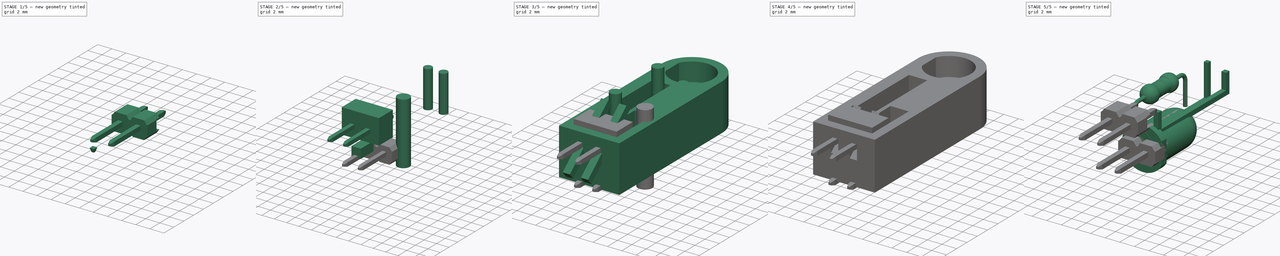
[diagram: build sequence overview — one tinted view per stage of 5, left to right]
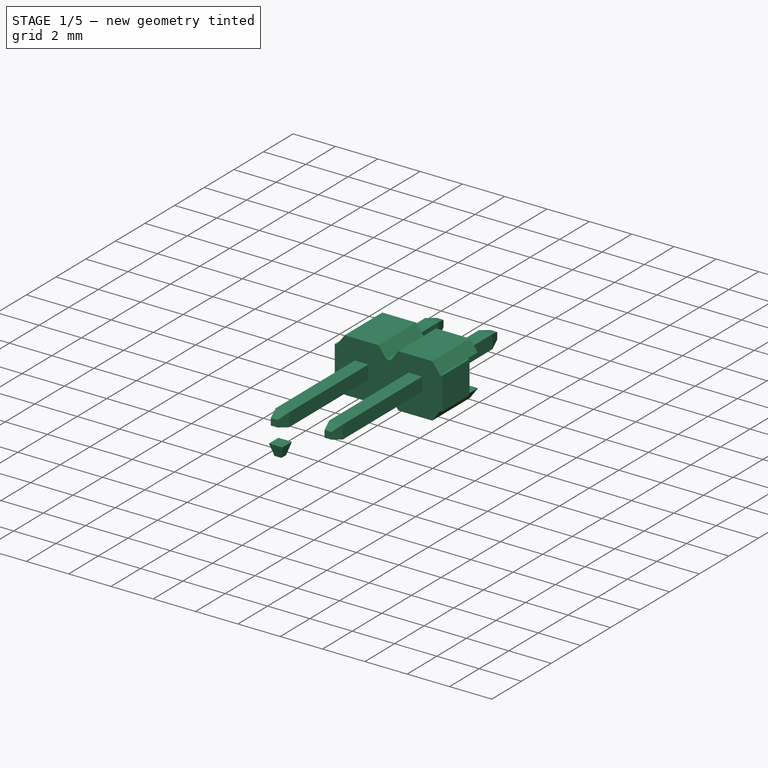
[diagram: stage 1 of 5 — iso view after this stage's code; geometry added in this stage tinted green]
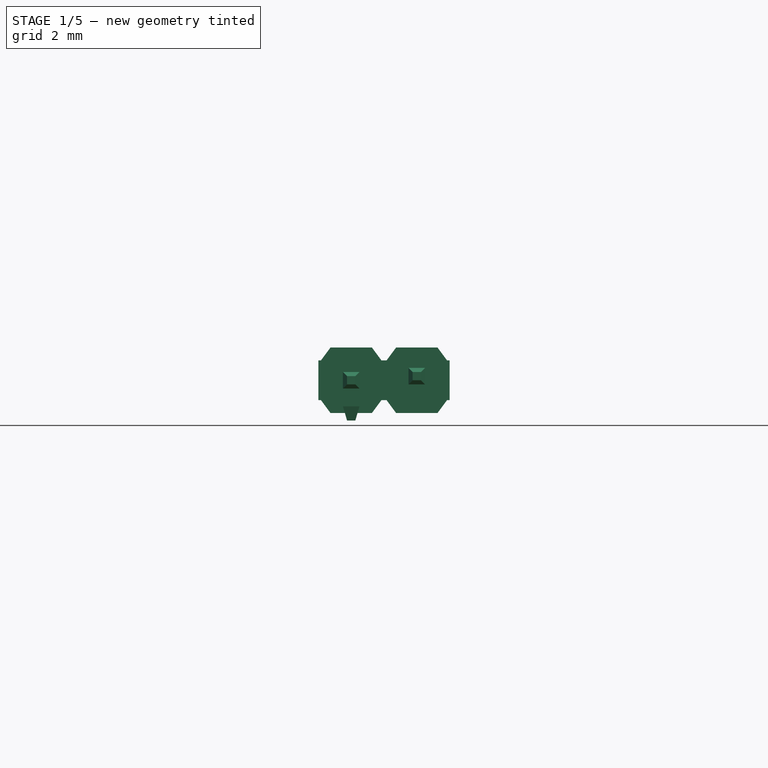
[diagram: stage 1 of 5 — front view after this stage's code; geometry added in this stage tinted green]
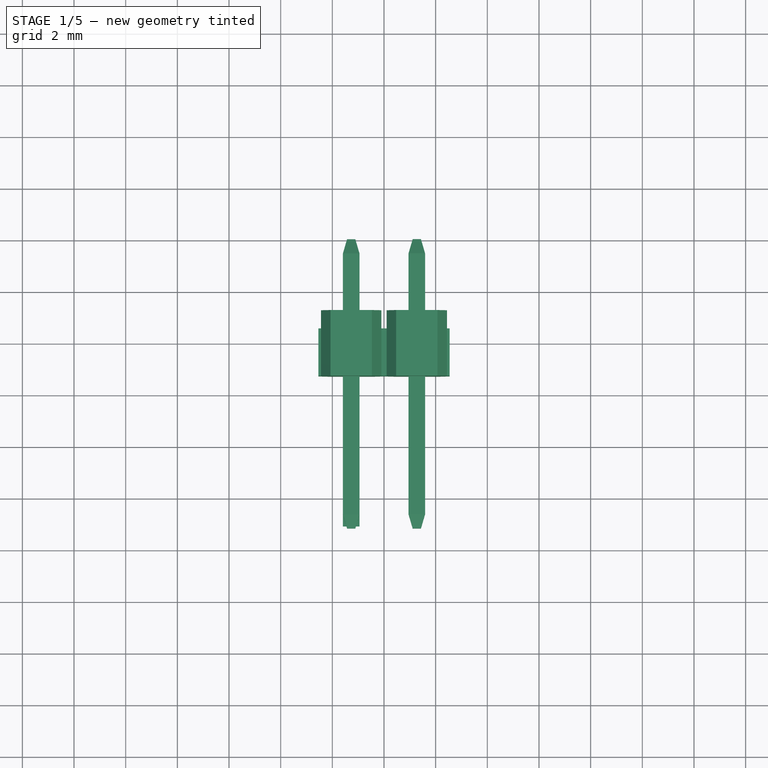
[diagram: stage 1 of 5 — top view after this stage's code; geometry added in this stage tinted green]
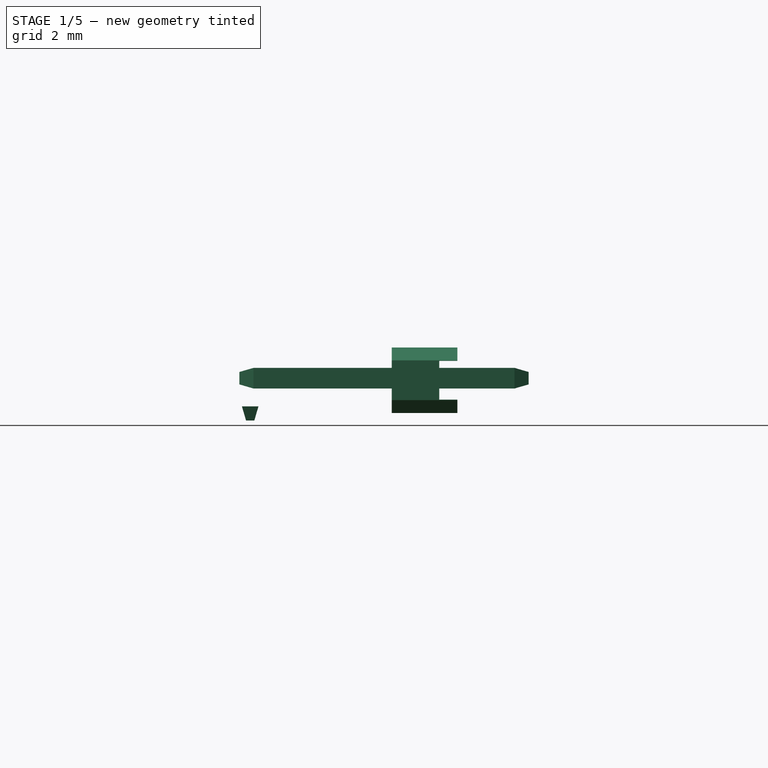
[diagram: stage 1 of 5 — right view after this stage's code; geometry added in this stage tinted green]
FCSTD DOCUMENT  (FreeCAD 0.18R16131 (Git))
Label: pcb-led-recto
License: Public Domain
LicenseURL: http://en.wikipedia.org/wiki/Public_domain
objects: Part::MultiFuse×16, Sketcher::SketchObject×13, Part::Box×10, Part::Cut×8, Part::Feature×8, Part::FeaturePython×6, App::DocumentObjectGroup×4, Part::Cylinder×3, PartDesign::Pad×2, PartDesign::Pocket×2, Part::Loft×2, PartDesign::Body×2, Part::Part2DObjectPython×2, Part::Extrusion×2, Part::Compound×1, PartDesign::ShapeBinder×1, PartDesign::Revolution×1, Part::Sweep×1
note: 85 computed .brp shape members not serialized (recipe doc carries the construction recipe); baked Part::Feature solids carry a one-line shape summary decoded from their .brp

FEATURE [Part::Box] Box  label="Cubo"
  AttacherType = Attacher::AttachEngine3D
  Height = 10.1
  Length = 0.64
  Placement = pos=(-1.59,-7.07,-1.01) rot=(0,0,1;0rad)
  Width = 0.64
FEATURE [Sketcher::SketchObject] Sketch017
  ExternalGeometry = -> [Box]
  MapMode = 5
  Placement = pos=(-1.59,-7.07,9.09) rot=(0,0,1;0rad)
  Support = -> [Box]
  sketch-geometry (4):
    g0: LineSegment StartX=0 StartY=0.64 StartZ=0 EndX=0.64 EndY=0.64 EndZ=0
    g1: LineSegment StartX=0.64 StartY=0.64 StartZ=0 EndX=0.64 EndY=0 EndZ=0
    g2: LineSegment StartX=0.64 StartY=0 StartZ=0 EndX=0 EndY=0 EndZ=0
    g3: LineSegment StartX=0 StartY=0 StartZ=0 EndX=0 EndY=0.64 EndZ=0
  constraints (10):
    c: Coincident(g0,g1)
    c: Coincident(g1,g2)
    c: Coincident(g2,g3)
    c: Coincident(g3,g0)
    c: Horizontal(g0)
    c: Horizontal(g2)
    c: Vertical(g1)
    c: Vertical(g3)
    c: Coincident(g0,g-3)
    c: Coincident(g1,g-4)
FEATURE [Sketcher::SketchObject] Sketch018
  AttachmentOffset = pos=(0,0,0.55) rot=(0,0,1;0rad)
  ExternalGeometry = -> [Box]
  MapMode = 5
  Placement = pos=(-1.59,-7.07,9.64) rot=(0,0,1;0rad)
  Support = -> [Box]
  sketch-geometry (6):
    g0: LineSegment StartX=0.16 StartY=0.48 StartZ=0 EndX=0.48 EndY=0.48 EndZ=0
    g1: LineSegment StartX=0.48 StartY=0.48 StartZ=0 EndX=0.48 EndY=0.16 EndZ=0
    g2: LineSegment StartX=0.48 StartY=0.16 StartZ=0 EndX=0.16 EndY=0.16 EndZ=0
    g3: LineSegment StartX=0.16 StartY=0.16 StartZ=0 EndX=0.16 EndY=0.48 EndZ=0
    g4: LineSegment [constr] StartX=0 StartY=0.64 StartZ=0 EndX=0.32 EndY=0.32 EndZ=0
    g5: LineSegment [constr] StartX=0.64 StartY=0.64 StartZ=0 EndX=0 EndY=0 EndZ=0
  constraints (16):
    c: Coincident(g0,g1)
    c: Coincident(g1,g2)
    c: Coincident(g2,g3)
    c: Coincident(g3,g0)
    c: Horizontal(g0)
    c: Horizontal(g2)
    c: Vertical(g1)
    c: Vertical(g3)
    c: DistanceX(g0,g0) = 0.32
    c: DistanceY(g1,g1) = 0.32
    c: Coincident(g4,g-3)
    c: Coincident(g5,g-3)
    c: Coincident(g5,g-1)
    c: PointOnObject(g4,g5)
    c: Symmetric(g0,g1,g4)
    c: Angle(g5,g4) = 1.5708
FEATURE [Part::Loft] Loft
  Closed = false
  MaxDegree = 5
  Ruled = true
  Sections = -> [Sketch017,Sketch018]
  Solid = true
FEATURE [Part::FeaturePython] Clone005  label="Soporte pines"  # WARN: FeaturePython — macro-defined, semantics opaque (R4)
  Placement = pos=(1.27,-6.75,1.2) rot=(0,0,1;3.14159rad)
  Scale = (1,1,1)
FEATURE [Part::FeaturePython] Clone003  label="Loft001"  # Draft clone (typed FeaturePython)
  AttacherType = Attacher::AttachEngine3D
  Fuse = false
  Objects = -> [Loft]
  Placement = pos=(0,-13.5,8.08) rot=(1,0,0;3.14159rad)
  Scale = (1,1,1)
FEATURE [Part::MultiFuse] Fusion
  Refine = true
  Shapes = -> [Loft,Clone003,Box]
FEATURE [Part::FeaturePython] Clone004  label="Fusion001"  # Draft clone (typed FeaturePython)
  AttacherType = Attacher::AttachEngine3D
  Fuse = false
  Objects = -> [Fusion]
  Placement = pos=(2.54,0.16,0) rot=(0,0,1;0rad)
  Scale = (1,1,1)
FEATURE [Part::MultiFuse] Fusion001  label="Pines"
  Refine = true
  Shapes = -> [Fusion,Clone004]
FEATURE [Part::Box] Box001  label="Cubo001"
  AttacherType = Attacher::AttachEngine3D
  Height = 10.1
  Length = 0.64
  Placement = pos=(-1.59,-7.07,-1.01) rot=(0,0,1;0rad)
  Width = 0.64
FEATURE [Sketcher::SketchObject] Sketch019
  ExternalGeometry = -> [Box001]
  MapMode = 5
  Placement = pos=(-1.59,-7.07,9.09) rot=(0,0,1;0rad)
  Support = -> [Box001]
  sketch-geometry (4):
    g0: LineSegment StartX=0 StartY=0.64 StartZ=0 EndX=0.64 EndY=0.64 EndZ=0
    g1: LineSegment StartX=0.64 StartY=0.64 StartZ=0 EndX=0.64 EndY=0 EndZ=0
    g2: LineSegment StartX=0.64 StartY=0 StartZ=0 EndX=0 EndY=0 EndZ=0
    g3: LineSegment StartX=0 StartY=0 StartZ=0 EndX=0 EndY=0.64 EndZ=0
  constraints (10):
    c: Coincident(g0,g1)
    c: Coincident(g1,g2)
    c: Coincident(g2,g3)
    c: Coincident(g3,g0)
    c: Horizontal(g0)
    c: Horizontal(g2)
    c: Vertical(g1)
    c: Vertical(g3)
    c: Coincident(g0,g-3)
    c: Coincident(g1,g-4)
FEATURE [Sketcher::SketchObject] Sketch020
  AttachmentOffset = pos=(0,0,0.55) rot=(0,0,1;0rad)
  ExternalGeometry = -> [Box001]
  MapMode = 5
  Placement = pos=(-1.59,-7.07,9.64) rot=(0,0,1;0rad)
  Support = -> [Box001]
  sketch-geometry (6):
    g0: LineSegment StartX=0.16 StartY=0.48 StartZ=0 EndX=0.48 EndY=0.48 EndZ=0
    g1: LineSegment StartX=0.48 StartY=0.48 StartZ=0 EndX=0.48 EndY=0.16 EndZ=0
    g2: LineSegment StartX=0.48 StartY=0.16 StartZ=0 EndX=0.16 EndY=0.16 EndZ=0
    g3: LineSegment StartX=0.16 StartY=0.16 StartZ=0 EndX=0.16 EndY=0.48 EndZ=0
    g4: LineSegment [constr] StartX=0 StartY=0.64 StartZ=0 EndX=0.32 EndY=0.32 EndZ=0
    g5: LineSegment [constr] StartX=0.64 StartY=0.64 StartZ=0 EndX=0 EndY=0 EndZ=0
  constraints (16):
    c: Coincident(g0,g1)
    c: Coincident(g1,g2)
    c: Coincident(g2,g3)
    c: Coincident(g3,g0)
    c: Horizontal(g0)
    c: Horizontal(g2)
    c: Vertical(g1)
    c: Vertical(g3)
    c: DistanceX(g0,g0) = 0.32
    c: DistanceY(g1,g1) = 0.32
    c: Coincident(g4,g-3)
    c: Coincident(g5,g-3)
    c: Coincident(g5,g-1)
    c: PointOnObject(g4,g5)
    c: Symmetric(g0,g1,g4)
    c: Angle(g5,g4) = 1.5708
FEATURE [Part::Loft] Loft001  label="Loft002"
  Closed = false
  MaxDegree = 5
  Ruled = true
  Sections = -> [Sketch019,Sketch020]
  Solid = true
FEATURE [Part::FeaturePython] Clone007  label="Loft003"  # Draft clone (typed FeaturePython)
  AttacherType = Attacher::AttachEngine3D
  Fuse = false
  Objects = -> [Loft001]
  Placement = pos=(0,-13.5,8.08) rot=(1,0,0;3.14159rad)
  Scale = (1,1,1)
FEATURE [Part::MultiFuse] Fusion002  label="Conector recto final"
  Placement = pos=(0,2.47,6.75) rot=(1,0,0;1.5708rad)
  Refine = true
  Shapes = -> [Fusion001,Clone005]
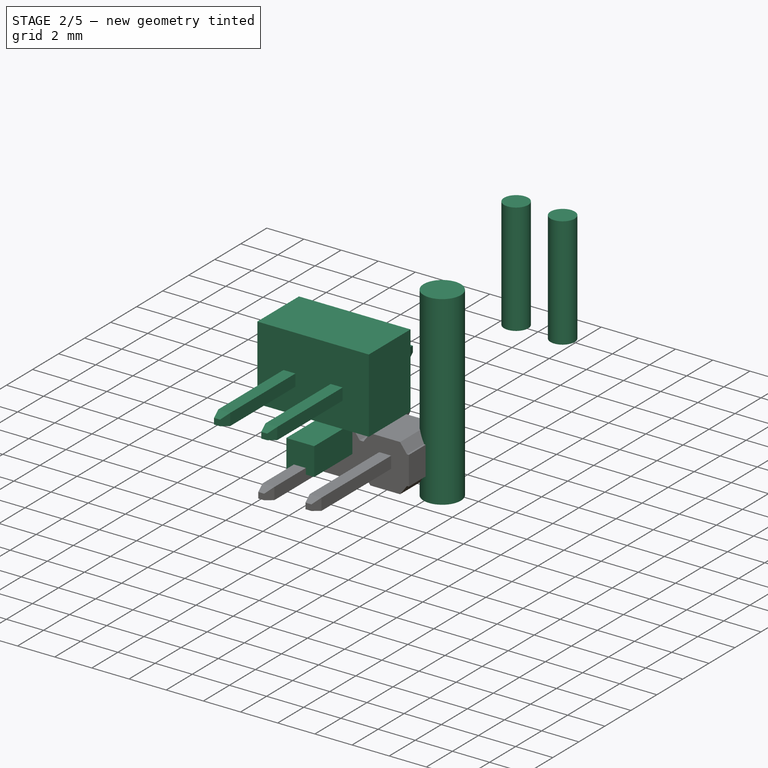
[diagram: stage 2 of 5 — iso view after this stage's code; geometry added in this stage tinted green]
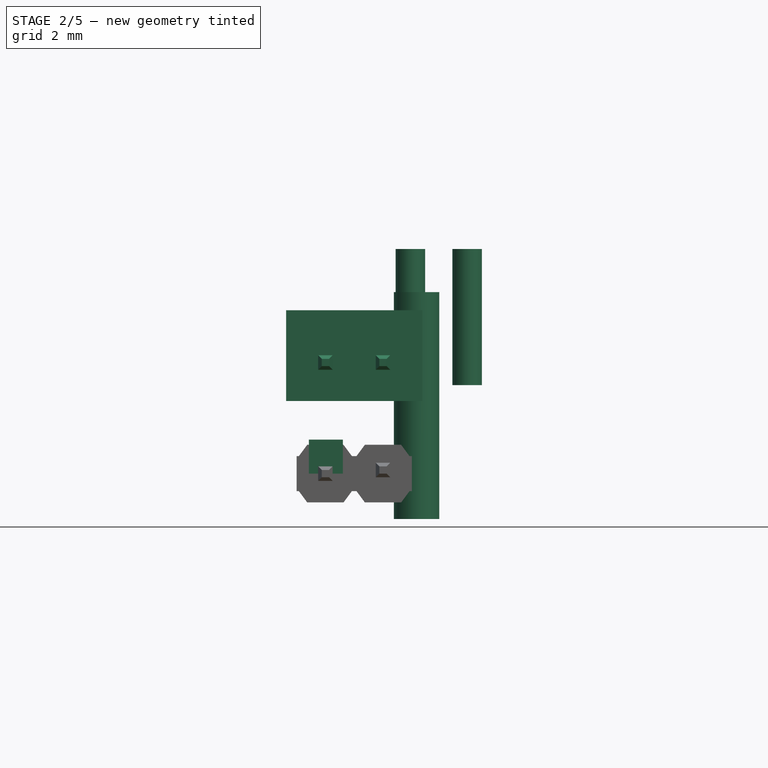
[diagram: stage 2 of 5 — front view after this stage's code; geometry added in this stage tinted green]
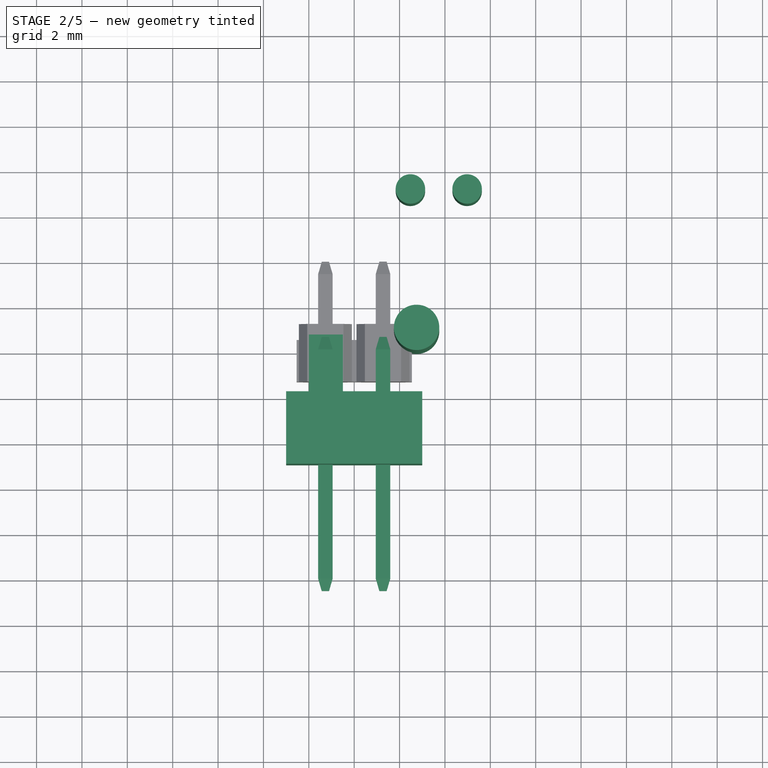
[diagram: stage 2 of 5 — top view after this stage's code; geometry added in this stage tinted green]
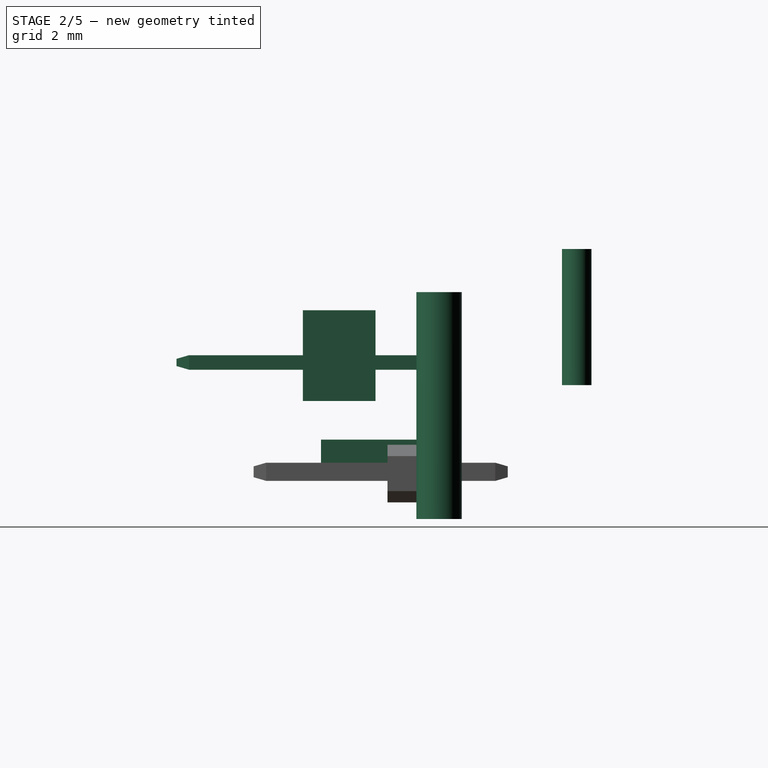
[diagram: stage 2 of 5 — right view after this stage's code; geometry added in this stage tinted green]
FEATURE [Part::FeaturePython] Clone006  label="Soporte pines001"  # WARN: FeaturePython — macro-defined, semantics opaque (R4)
  Placement = pos=(1.27,-6.75,1.2) rot=(0,0,1;3.14159rad)
  Scale = (1,1,1)
FEATURE [Part::MultiFuse] Fusion005
  Refine = true
  Shapes = -> [Loft001,Clone007,Box001]
FEATURE [Part::FeaturePython] Clone008  label="Fusion004"  # Draft clone (typed FeaturePython)
  AttacherType = Attacher::AttachEngine3D
  Fuse = false
  Objects = -> [Fusion005]
  Placement = pos=(2.54,0,0) rot=(0,0,1;0rad)
  Scale = (1,1,1)
FEATURE [Part::MultiFuse] Fusion004  label="Pines001"
  Refine = true
  Shapes = -> [Fusion005,Clone008]
FEATURE [Part::MultiFuse] Fusion003  label="Conector recto final001"
  Placement = pos=(0,2.47,6.75) rot=(1,0,0;1.5708rad)
  Refine = true
  Shapes = -> [Fusion004,Clone006]
FEATURE [Part::Compound] Compound
  Links = -> [Fusion003]
  Placement = pos=(0,-3.4,4.9) rot=(0,0,1;0rad)
FEATURE [Part::Part2DObjectPython] Circle001  # Draft 2D object (typed FeaturePython)
  FirstAngle = 0
  LastAngle = 0
  MakeFace = true
  Placement = pos=(2.47734,7.06871,3.9) rot=(0,0,1;0rad)
  Radius = 0.65
FEATURE [Part::Part2DObjectPython] Circle002  # Draft 2D object (typed FeaturePython)
  FirstAngle = 0
  LastAngle = 0
  MakeFace = true
  Placement = pos=(4.97734,7.06871,3.9) rot=(0,0,1;0rad)
  Radius = 0.65
FEATURE [Part::Extrusion] Extrude
  Base = -> Circle001
  Dir = (0,0,1)
  DirMode = 2
  FaceMakerClass = Part::FaceMakerBullseye
  LengthFwd = 6
  LengthRev = 0
  Solid = false
  Symmetric = false
FEATURE [Part::Extrusion] Extrude001
  Base = -> Circle002
  Dir = (0,0,1)
  DirMode = 2
  FaceMakerClass = Part::FaceMakerBullseye
  LengthFwd = 6
  LengthRev = 0
  Solid = false
  Symmetric = false
FEATURE [Part::Cylinder] Cylinder  label="Cilindro taladro pin"
  Angle = 360
  AttacherType = Attacher::AttachEngine3D
  Height = 10
  Placement = pos=(2.75,1,-2) rot=(0,0,1;0rad)
  Radius = 1
FEATURE [Part::Box] Box006  label="Cubo006"
  AttacherType = Attacher::AttachEngine3D
  Height = 1.5
  Length = 1.5
  Placement = pos=(-2,-4.2,0) rot=(0,0,1;0rad)
  Width = 5
FEATURE [Part::Box] Box007  label="Cubo007"
  AttacherType = Attacher::AttachEngine3D
  Height = 4
  Length = 6
  Placement = pos=(-3,-5,3.2) rot=(0,0,1;0rad)
  Width = 3.2
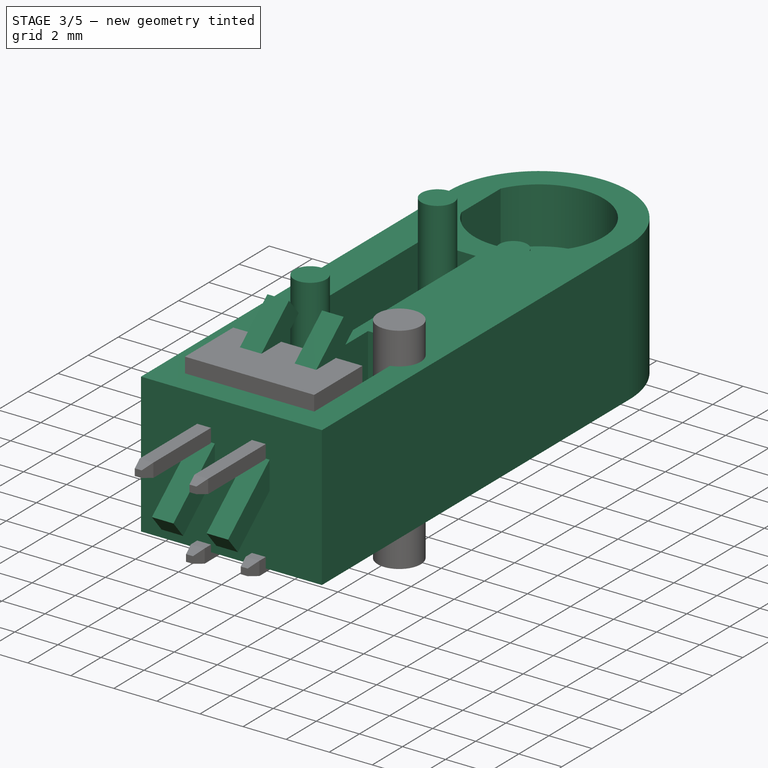
[diagram: stage 3 of 5 — iso view after this stage's code; geometry added in this stage tinted green]
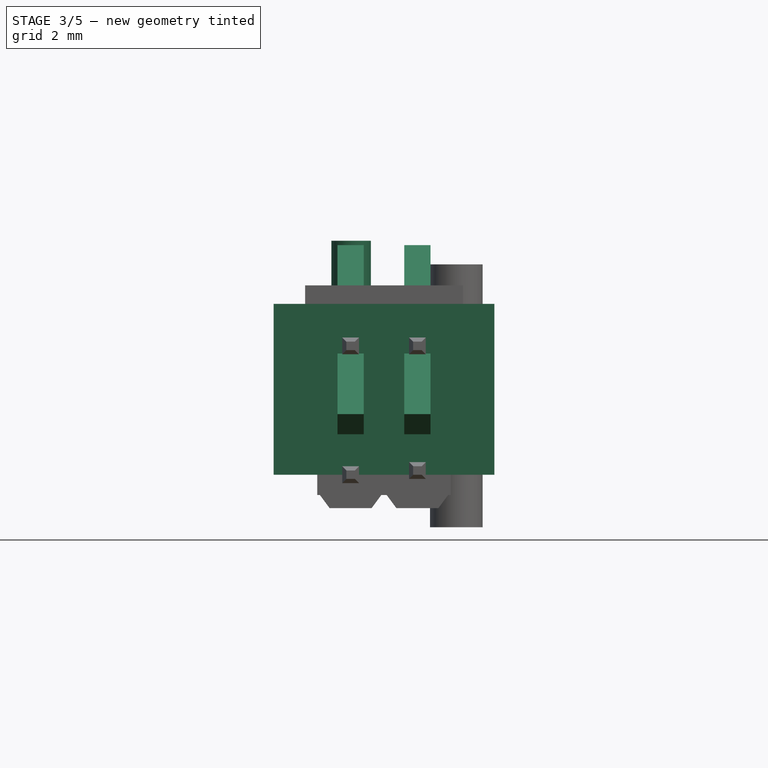
[diagram: stage 3 of 5 — front view after this stage's code; geometry added in this stage tinted green]
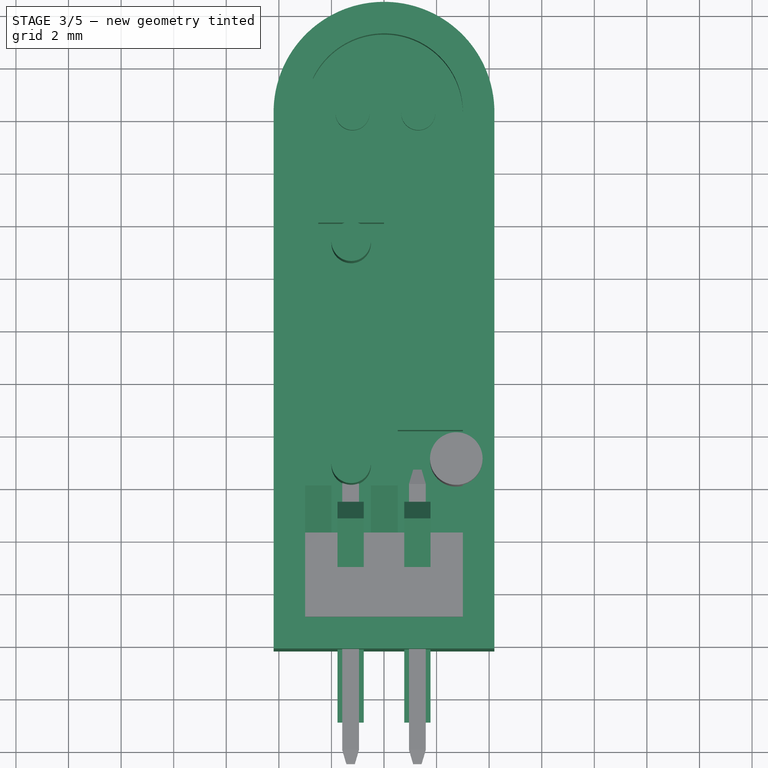
[diagram: stage 3 of 5 — top view after this stage's code; geometry added in this stage tinted green]
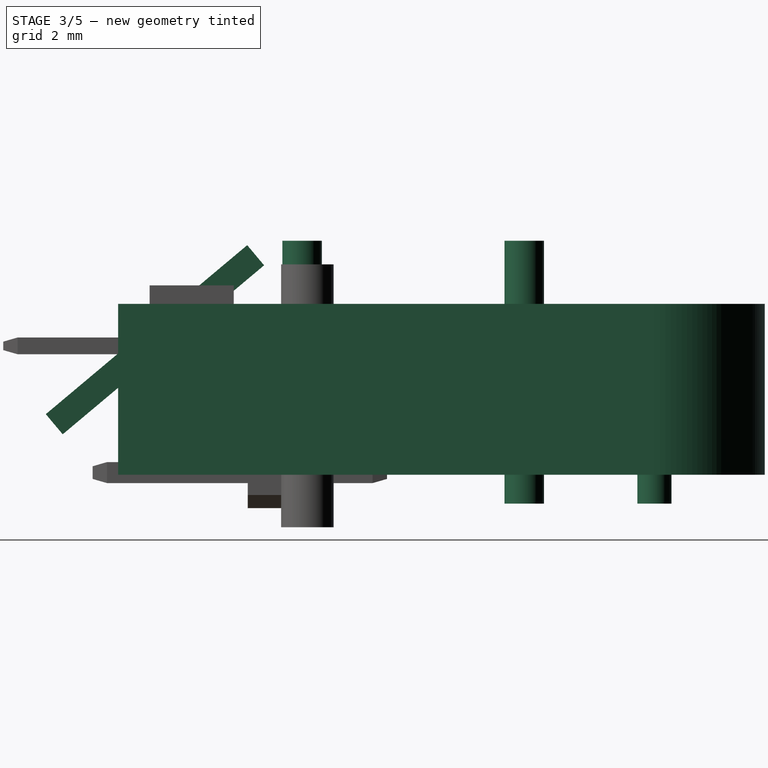
[diagram: stage 3 of 5 — right view after this stage's code; geometry added in this stage tinted green]
FEATURE [Sketcher::SketchObject] Sketch
  MapMode = 5
  Support = -> [XY_Plane]
  sketch-geometry (24):
    g0: LineSegment StartX=-2.5 StartY=10 StartZ=0 EndX=0 EndY=10 EndZ=0
    g1: LineSegment StartX=0 StartY=10 StartZ=0 EndX=0 EndY=0 EndZ=0
    g2: LineSegment StartX=0 StartY=0 StartZ=0 EndX=-0.5 EndY=0 EndZ=0
    g3: LineSegment StartX=-2.5 StartY=0 StartZ=0 EndX=-2.5 EndY=10 EndZ=0
    g4: ArcOfCircle CenterX=0 CenterY=14.2 CenterZ=0 NormalX=0 NormalY=0 NormalZ=1 AngleXU=0 Radius=3 StartAngle=3.59262 EndAngle=8.97375
    g5: LineSegment StartX=-3 StartY=-2 StartZ=0 EndX=-2 EndY=-2 EndZ=0
    g6: LineSegment StartX=3 StartY=-2 StartZ=0 EndX=3 EndY=-5 EndZ=0
    g7: LineSegment StartX=3 StartY=-5 StartZ=0 EndX=-3 EndY=-5 EndZ=0
    g8: LineSegment StartX=-3 StartY=-5 StartZ=0 EndX=-3 EndY=-2 EndZ=0
    g9: LineSegment [constr] StartX=-1.25 StartY=0 StartZ=0 EndX=-1.25 EndY=-11.2 EndZ=0
    g10: LineSegment [constr] StartX=1.25 StartY=-0.0432896 StartZ=0 EndX=1.25 EndY=-11.2433 EndZ=0
    g11: LineSegment StartX=-2 StartY=-2 StartZ=0 EndX=-2 EndY=0 EndZ=0
    g12: LineSegment StartX=-0.5 StartY=0 StartZ=0 EndX=-0.5 EndY=-2 EndZ=0
    g13: LineSegment StartX=-0.5 StartY=-2 StartZ=0 EndX=0.521354 EndY=-2 EndZ=0
    g14: LineSegment StartX=-2 StartY=0 StartZ=0 EndX=-2.5 EndY=0 EndZ=0
    g15: LineSegment StartX=0.521354 StartY=2.10969 StartZ=0 EndX=0.521354 EndY=-2 EndZ=0
    g16: LineSegment StartX=4.2 StartY=14.2 StartZ=0 EndX=4.2 EndY=-6.2 EndZ=0
    g17: LineSegment StartX=4.2 StartY=-6.2 StartZ=0 EndX=-4.2 EndY=-6.2 EndZ=0
    g18: LineSegment StartX=-4.2 StartY=-6.2 StartZ=0 EndX=-4.2 EndY=14.2 EndZ=0
    g19: LineSegment StartX=-2.7 StartY=15.5077 StartZ=0 EndX=-2.7 EndY=12.8923 EndZ=0
    g20: LineSegment [constr] StartX=0 StartY=10 StartZ=0 EndX=0 EndY=11.2 EndZ=0
    g21: ArcOfCircle CenterX=0 CenterY=14.2 CenterZ=0 NormalX=0 NormalY=0 NormalZ=1 AngleXU=0 Radius=4.2 StartAngle=0 EndAngle=3.14159
    g22: LineSegment StartX=3 StartY=-2 StartZ=0 EndX=3 EndY=2.10969 EndZ=0
    g23: LineSegment StartX=0.521354 StartY=2.10969 StartZ=0 EndX=3 EndY=2.10969 EndZ=0
  constraints (64):
    c: Coincident(g0,g1)
    c: Coincident(g1,g2)
    c: Coincident(g14,g3)
    c: Coincident(g3,g0)
    c: Horizontal(g0)
    c: Horizontal(g2)
    c: Vertical(g1)
    c: DistanceY(g3,g3) = 10
    c: DistanceX(g0,g0) = 2.5
    c: Radius(g4) = 3
    c: Vertical(g3)
    c: Coincident(g6,g7)
    c: Coincident(g7,g8)
    c: Coincident(g8,g5)
    c: Horizontal(g5)
    c: Vertical(g6)
    c: Vertical(g8)
    c: DistanceX(g5,g6) = 6
    c: DistanceY(g6,g6) = 3
    c: Vertical(g9)
    c: Vertical(g10)
    c: DistanceX(g9,g10) = 2.5
    c: DistanceY(g9,g9) = 11.2
    c: Equal(g9,g10)
    c: Coincident(g1,g-1)
    c: DistanceY(g6,g1) = 2
    c: Vertical(g11)
    c: Vertical(g12)
    c: Tangent(g5,g13)
    c: Coincident(g5,g11)
    c: Coincident(g12,g13)
    c: DistanceX(g11,g2) = 1.5
    c: Coincident(g15,g13)
    c: Vertical(g15)
    c: Coincident(g16,g17)
    c: Coincident(g17,g18)
    c: Vertical(g16)
    c: Vertical(g18)
    c: DistanceY(g17,g7) = 1.2
    c: Symmetric(g7,g6,g-2)
    c: DistanceX(g17,g7) = 1.2
    c: Coincident(g12,g2)
    c: Symmetric(g11,g2,g9)
    c: Coincident(g11,g14)
    c: Symmetric(g1,g3,g9)
    c: Vertical(g19)
    c: DistanceX(g19,g4) = 2.7
    c: Coincident(g4,g19)
    c: Coincident(g4,g19)
    c: Coincident(g19,g4)
    c: Horizontal(g14)
    c: Symmetric(g17,g16,g-2)
    c: PointOnObject(g4,g-2)
    c: Coincident(g20,g0)
    c: Vertical(g20)
    c: DistanceY(g0,g20) = 1.2
    c: PointOnObject(g20,g4)
    c: Coincident(g21,g4)
    c: PointOnObject(g21,g16)
    c: Vertical(g22)
    c: Coincident(g23,g15)
    c: Horizontal(g23)
    c: Coincident(g22,g23)
    c: Coincident(g6,g22)
FEATURE [PartDesign::Pad] Pad
  Length = 6.5
  Length2 = 100
  Profile = -> Sketch
  Refine = true
  Type = 0
FEATURE [Sketcher::SketchObject] Sketch002
  MapMode = 5
  Placement = pos=(-3,0,0) rot=(0.57735,0.57735,0.57735;2.0944rad)
  sketch-geometry (3):
    g0: LineSegment StartX=-5 StartY=6.5 StartZ=0 EndX=0 EndY=6.5 EndZ=0
    g1: LineSegment StartX=0 StartY=6.5 StartZ=0 EndX=-5 EndY=0 EndZ=0
    g2: LineSegment StartX=-5 StartY=0 StartZ=0 EndX=-5 EndY=6.5 EndZ=0
  constraints (3):
    c: Coincident(g0,g2)
    c: Coincident(g1,g2)
    c: Coincident(g0,g1)
FEATURE [PartDesign::Pocket] Pocket
  BaseFeature = -> Pad
  Length = 6
  Length2 = 100
  Profile = -> Sketch002
  Refine = true
  Reversed = true
  Type = 0
FEATURE [Part::Box] Box004  label="Cubo004"
  AttacherType = Attacher::AttachEngine3D
  Height = 10
  Length = 1
  Placement = pos=(-1.67,-0.44,4.37) rot=(1,0,0;1.5708rad)
  Width = 1
FEATURE [Part::Box] Box005  label="Cubo005"
  AttacherType = Attacher::AttachEngine3D
  Height = 10
  Length = 1
  Placement = pos=(0.87,-0.44,4.37) rot=(1,0,0;1.5708rad)
  Width = 1
FEATURE [Part::MultiFuse] Fusion007
  Placement = pos=(-0.1,2.5,4.9) rot=(1,0,0;0.698132rad)
  Refine = true
  Shapes = -> [Box005,Box004]
FEATURE [Sketcher::SketchObject] Sketch021
  ExternalGeometry = -> [Pocket]
  MapMode = 5
  Placement = pos=(0,0,0) rot=(1,0,0;3.14159rad)
  Support = -> [Pocket]
  sketch-geometry (5):
    g0: LineSegment StartX=4.2 StartY=-14.2 StartZ=0 EndX=4.2 EndY=6.2 EndZ=0
    g1: LineSegment StartX=4.2 StartY=6.2 StartZ=0 EndX=-4.2 EndY=6.2 EndZ=0
    g2: LineSegment StartX=-4.2 StartY=6.2 StartZ=0 EndX=-4.2 EndY=-14.2 EndZ=0
    g3: ArcOfCircle CenterX=1e-16 CenterY=-14.2 CenterZ=0 NormalX=0 NormalY=0 NormalZ=1 AngleXU=0 Radius=4.2 StartAngle=3.14159 EndAngle=6.28319
    g4: LineSegment [constr] StartX=-4.2 StartY=-14.2 StartZ=0 EndX=4.2 EndY=-14.2 EndZ=0
  constraints (12):
    c: Coincident(g0,g1)
    c: Coincident(g1,g2)
    c: Horizontal(g1)
    c: Vertical(g2)
    c: Coincident(g0,g-4)
    c: Coincident(g2,g3)
    c: Coincident(g2,g-3)
    c: Coincident(g0,g3)
    c: Coincident(g0,g-4)
    c: Coincident(g4,g2)
    c: Coincident(g4,g0)
    c: PointOnObject(g3,g4)
FEATURE [PartDesign::Pad] Pad001
  BaseFeature = -> Pocket
  Length = 3.9
  Length2 = 100
  Profile = -> Sketch021
  Refine = true
  Reversed = true
  Type = 0
FEATURE [Part::Cylinder] Cylinder001  label="Cilindro001"
  Angle = 360
  AttacherType = Attacher::AttachEngine3D
  Height = 10
  Placement = pos=(-1.25,9.25,-1.1) rot=(0,0,1;1.5708rad)
  Radius = 0.75
FEATURE [Part::Cylinder] Cylinder002  label="Cilindro002"
  Angle = 360
  AttacherType = Attacher::AttachEngine3D
  Height = 10
  Placement = pos=(-1.25,0.8,-1.1) rot=(0,0,-1;1.5708rad)
  Radius = 0.75
FEATURE [Part::MultiFuse] Fusion011  label="Taladros resistencia"
  Refine = true
  Shapes = -> [Cylinder001,Cylinder002]
FEATURE [Part::MultiFuse] Fusion012
  Placement = pos=(-3.67362,7.13129,-5) rot=(0,0,1;0rad)
  Refine = true
  Shapes = -> [Extrude,Extrude001]
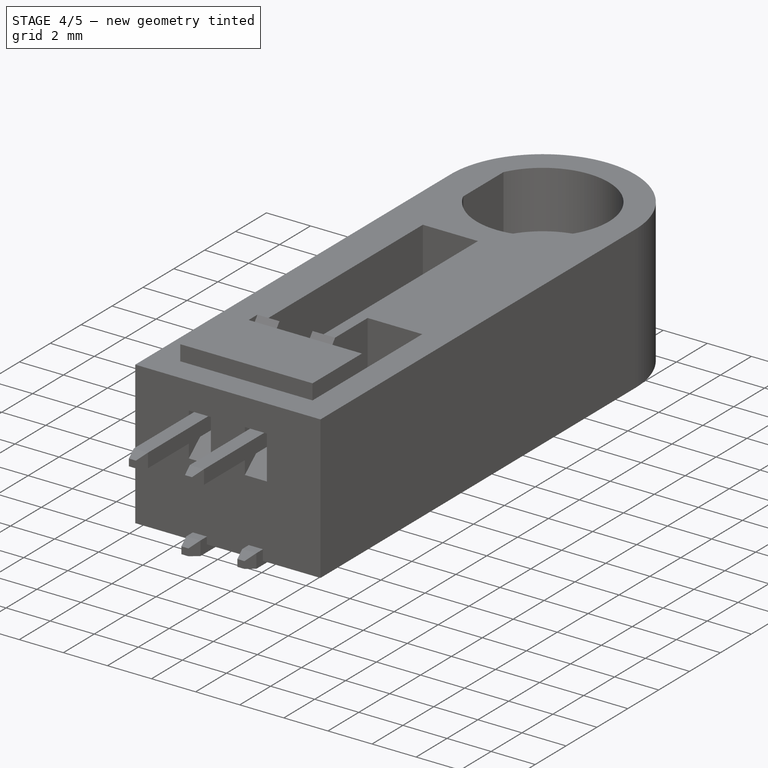
[diagram: stage 4 of 5 — iso view after this stage's code; geometry added in this stage tinted green]
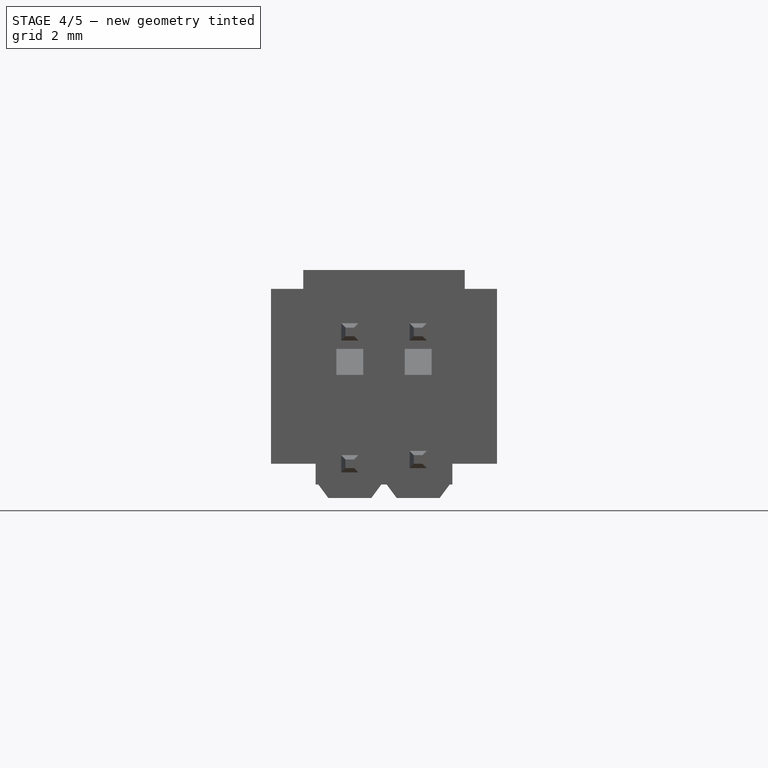
[diagram: stage 4 of 5 — front view after this stage's code; geometry added in this stage tinted green]
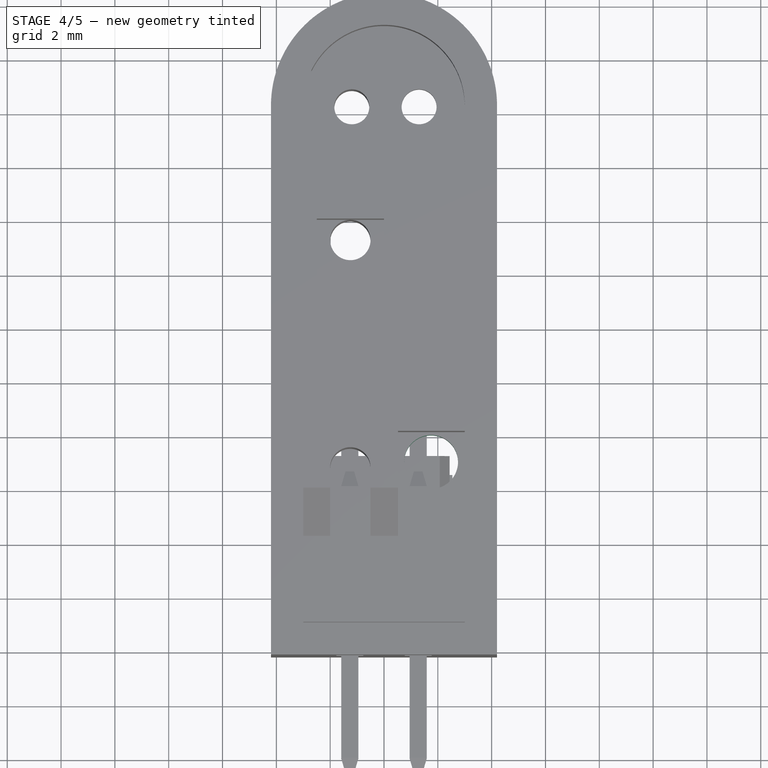
[diagram: stage 4 of 5 — top view after this stage's code; geometry added in this stage tinted green]
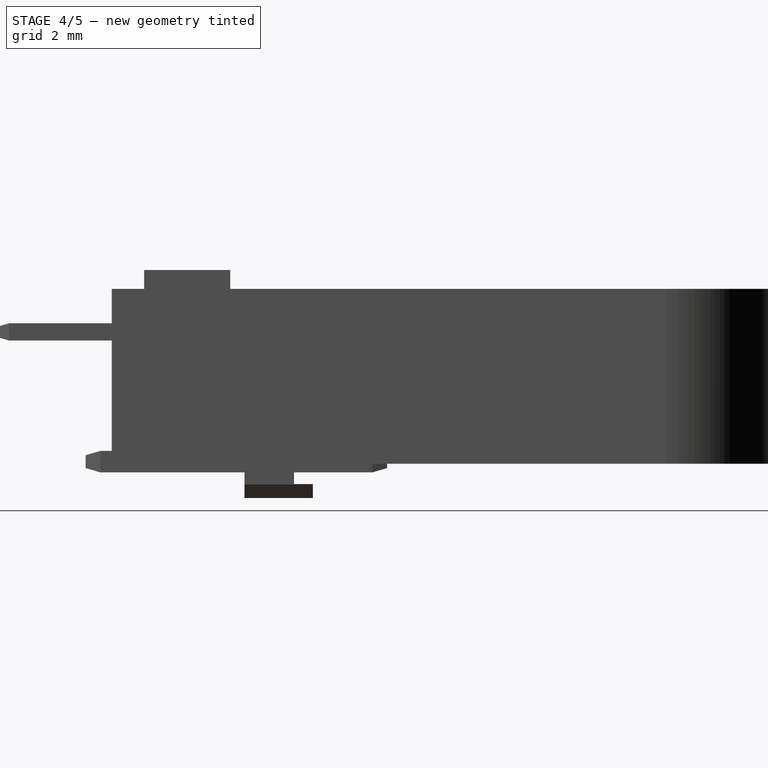
[diagram: stage 4 of 5 — right view after this stage's code; geometry added in this stage tinted green]
FEATURE [Part::Box] Box002  label="Cubo002"
  AttacherType = Attacher::AttachEngine3D
  Height = 10
  Length = 1
  Placement = pos=(0.87,-0.44,4.37) rot=(1,0,0;1.5708rad)
  Width = 1
FEATURE [Part::Box] Box003  label="Cubo003"
  AttacherType = Attacher::AttachEngine3D
  Height = 10
  Length = 1
  Placement = pos=(-1.67,-0.44,4.37) rot=(1,0,0;1.5708rad)
  Width = 1
FEATURE [Part::MultiFuse] Fusion009
  Placement = pos=(-0.1,2.5,4.9) rot=(1,0,0;0.698132rad)
  Refine = true
  Shapes = -> [Box005,Box004]
FEATURE [Part::MultiFuse] Fusion008
  Placement = pos=(-0.1,-1.5,-0.1) rot=(0,0,1;0rad)
  Refine = true
  Shapes = -> [Box002,Box003]
FEATURE [Part::MultiFuse] Fusion006
  Placement = pos=(-0.1,-1.5,-0.1) rot=(0,0,1;0rad)
  Refine = true
  Shapes = -> [Box002,Box003]
FEATURE [Part::MultiFuse] Fusion010  label="Taladros conector"
  Refine = true
  Shapes = -> [Fusion009,Fusion008,Fusion006,Fusion007]
FEATURE [PartDesign::ShapeBinder] CopyCut
  TraceSupport = false
FEATURE [Sketcher::SketchObject] Sketch022
  MapMode = 5
  Placement = pos=(0,0,3.9) rot=(0,0,1;0rad)
  Support = -> [CopyCut]
  sketch-geometry (1):
    g0: LineSegment StartX=-3.58574 StartY=-12.1173 StartZ=0 EndX=-4.60229 EndY=-11.1987 EndZ=0
FEATURE [PartDesign::Body] Body
  Group = -> [Sketch,Pad,Sketch002,Pocket,Sketch021,Pad001,CopyCut,Sketch022]
  Origin = -> Origin
  Tip = -> Pad001
FEATURE [Part::Cut] Cut  label="Base con taladros conector"
  Base = -> Body
  Refine = true
  Tool = -> Fusion010
FEATURE [Part::Cut] Cut001  label="Taladros led"
  Base = -> Cut
  Refine = true
  Tool = -> Fusion011
FEATURE [Part::Cut] Cut002  label="Taladro pin"
  Base = -> Cut001
  Placement = pos=(1,0,0) rot=(0,0,1;0rad)
  Refine = true
  Tool = -> Fusion012
FEATURE [Part::Cut] Cut003
  Base = -> Cut002
  Placement = pos=(-1,0,0) rot=(0,0,1;0rad)
  Refine = true
  Tool = -> Cylinder
FEATURE [Part::Feature] Shell_solid  label="Shell (Solid)"
  shape: bbox 2.505 x 7.853 x 3.002 mm, 6 faces (baked)
FEATURE [Part::Feature] Shell_solid001  label="Shell (Solid)001"
  Placement = pos=(0,-0.0854161,0.843021) rot=(1,0,0;0.000358rad)
  shape: bbox 3.857 x 17.38 x 3.006 mm, 6 faces (baked)
FEATURE [Part::Cut] Cut004
  Base = -> Cut003
  Refine = true
  Tool = -> Shell_solid001
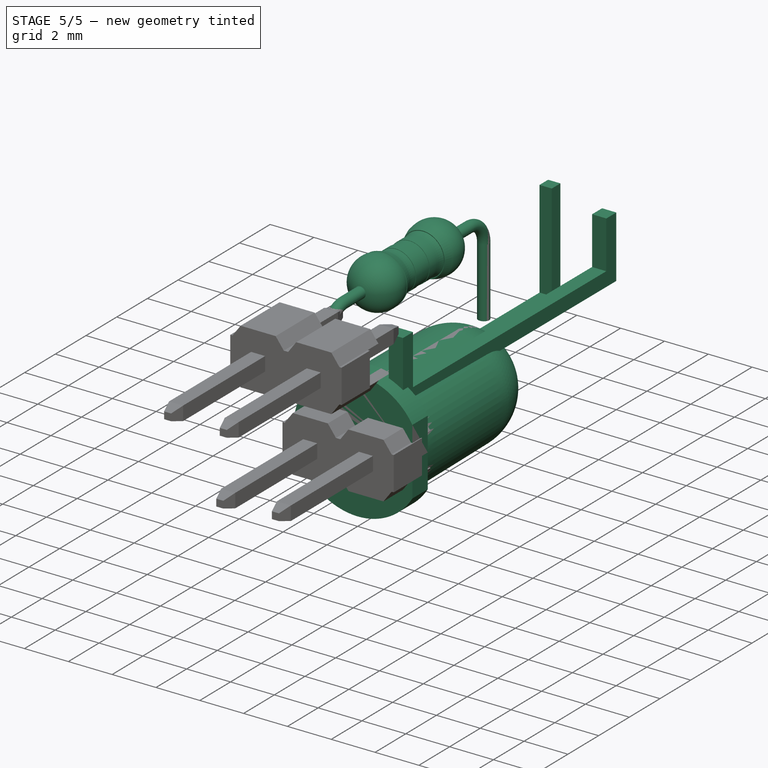
[diagram: stage 5 of 5 — iso view after this stage's code; geometry added in this stage tinted green]
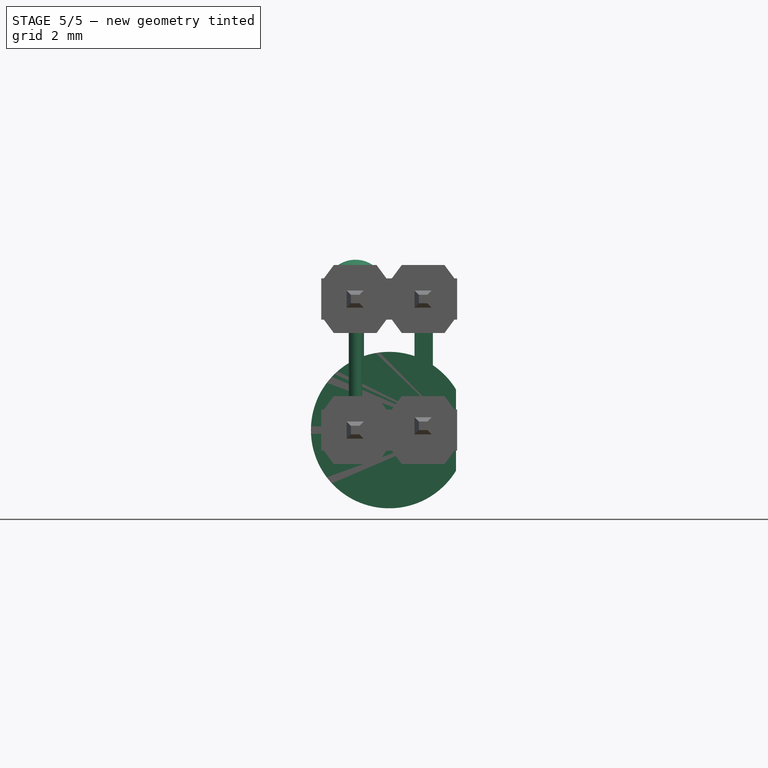
[diagram: stage 5 of 5 — front view after this stage's code; geometry added in this stage tinted green]
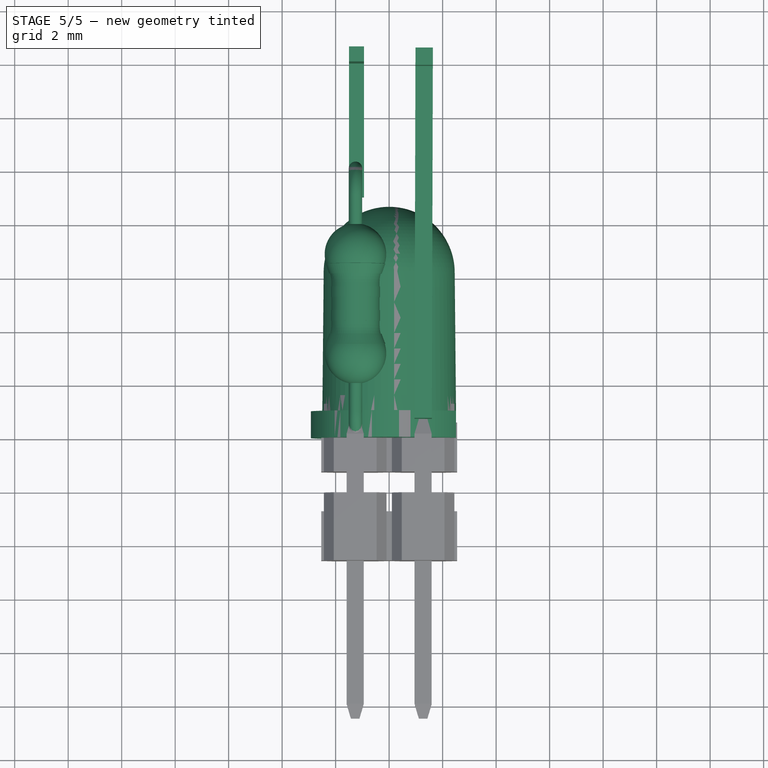
[diagram: stage 5 of 5 — top view after this stage's code; geometry added in this stage tinted green]
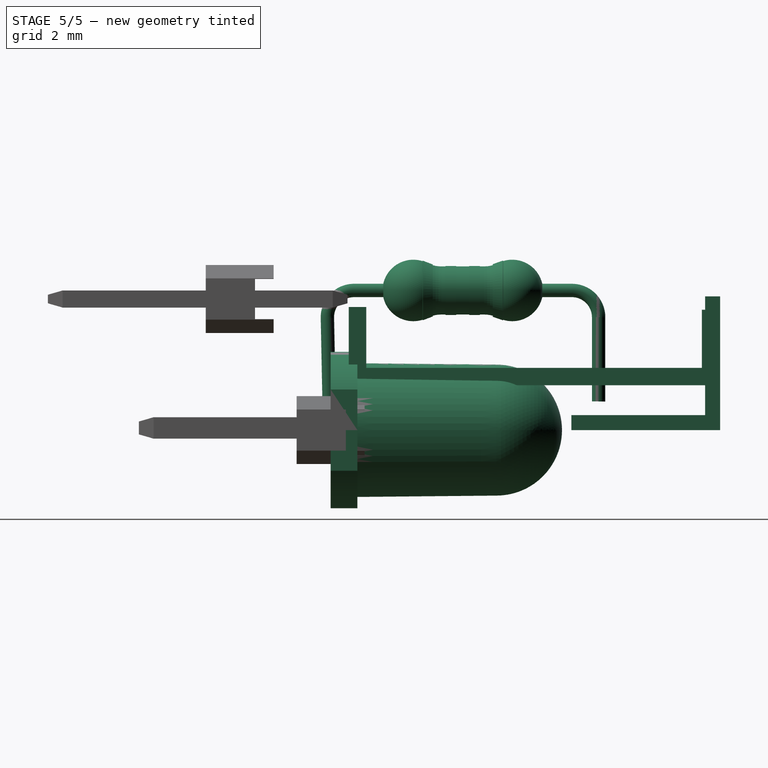
[diagram: stage 5 of 5 — right view after this stage's code; geometry added in this stage tinted green]
FEATURE [Part::Cut] Cut005
  Base = -> Cut004
  Refine = true
  Tool = -> Shell_solid
FEATURE [Part::Cut] Cut006
  Base = -> Cut005
  Refine = true
  Tool = -> Box006
FEATURE [Part::Cut] Cut007  label="Base"
  Base = -> Cut006
  Refine = true
  Tool = -> Box007
FEATURE [Sketcher::SketchObject] Sketch023
  MapMode = 5
  Support = -> [XY_Plane001]
  sketch-geometry (14):
    g0: LineSegment StartX=0 StartY=0 StartZ=0 EndX=0 EndY=6.2 EndZ=0
    g1: LineSegment [constr] StartX=0 StartY=6.2 StartZ=0 EndX=2.45 EndY=6.2 EndZ=0
    g2: LineSegment StartX=2.45 StartY=6.2 StartZ=0 EndX=2.5 EndY=1 EndZ=0
    g3: LineSegment StartX=2.5 StartY=1 StartZ=0 EndX=2.925 EndY=1 EndZ=0
    g4: LineSegment StartX=2.925 StartY=1 StartZ=0 EndX=2.925 EndY=0 EndZ=0
    g5: LineSegment StartX=0 StartY=0 StartZ=0 EndX=2.925 EndY=0 EndZ=0
    g6: LineSegment [constr] StartX=0 StartY=0 StartZ=0 EndX=-2.925 EndY=0 EndZ=0
    g7: LineSegment [constr] StartX=-2.925 StartY=0 StartZ=0 EndX=-2.925 EndY=1 EndZ=0
    g8: LineSegment [constr] StartX=-2.925 StartY=1 StartZ=0 EndX=-2.5 EndY=1 EndZ=0
    g9: LineSegment [constr] StartX=-2.5 StartY=1 StartZ=0 EndX=-2.45 EndY=6.2 EndZ=0
    g10: LineSegment [constr] StartX=-2.45 StartY=6.2 StartZ=0 EndX=0 EndY=6.2 EndZ=0
    g11: ArcOfCircle CenterX=0 CenterY=6.2 CenterZ=0 NormalX=0 NormalY=0 NormalZ=1 AngleXU=0 Radius=2.45 StartAngle=0 EndAngle=1.5708
    g12: ArcOfCircle [constr] CenterX=0 CenterY=6.2 CenterZ=0 NormalX=0 NormalY=0 NormalZ=1 AngleXU=0 Radius=2.45 StartAngle=1.5708 EndAngle=3.14159
    g13: LineSegment StartX=0 StartY=8.65 StartZ=0 EndX=0 EndY=6.2 EndZ=0
  constraints (38):
    c: Vertical(g0)
    c: Coincident(g0,g1)
    c: Horizontal(g1)
    c: Coincident(g1,g2)
    c: Coincident(g2,g3)
    c: Horizontal(g3)
    c: Coincident(g3,g4)
    c: Coincident(g5,g0)
    c: Coincident(g5,g4)
    c: Coincident(g0,g-1)
    c: Horizontal(g5)
    c: Vertical(g4)
    c: DistanceY(g4,g4) = 1
    c: Coincident(g0,g6)
    c: PointOnObject(g6,g-1)
    c: Coincident(g6,g7)
    c: Vertical(g7)
    c: Coincident(g7,g8)
    c: Horizontal(g8)
    c: Coincident(g8,g9)
    c: Coincident(g9,g10)
    c: Coincident(g10,g0)
    c: Equal(g7,g4)
    c: Equal(g6,g5)
    c: Equal(g8,g3)
    c: Equal(g9,g2)
    c: Coincident(g11,g0)
    c: Coincident(g11,g2)
    c: Coincident(g12,g0)
    c: Coincident(g12,g9)
    c: Radius(g11) = 2.45
    c: Coincident(g13,g0)
    c: Vertical(g13)
    c: Coincident(g11,g13)
    c: Coincident(g12,g11)
    c: DistanceX(g8,g2) = 5
    c: DistanceY(g0,g11) = 8.65
    c: DistanceX(g6,g4) = 5.85
FEATURE [PartDesign::Revolution] Revolution
  Angle = 360
  Axis = (0,1,0)
  Base = (0,0,0)
  Profile = -> Sketch023
  ReferenceAxis = -> Sketch023 [V_Axis]
  Reversed = true
FEATURE [Sketcher::SketchObject] Sketch003
  MapMode = 5
  Placement = pos=(0,0,0) rot=(1,0,0;1.5708rad)
  sketch-geometry (5):
    g0: LineSegment StartX=2.5 StartY=2.5 StartZ=0 EndX=3.5 EndY=2.5 EndZ=0
    g1: LineSegment StartX=3.5 StartY=2.5 StartZ=0 EndX=3.5 EndY=-2.5 EndZ=0
    g2: LineSegment StartX=3.5 StartY=-2.5 StartZ=0 EndX=2.5 EndY=-2.5 EndZ=0
    g3: LineSegment StartX=2.5 StartY=-2.5 StartZ=0 EndX=2.5 EndY=0 EndZ=0
    g4: LineSegment StartX=2.5 StartY=0 StartZ=0 EndX=2.5 EndY=2.5 EndZ=0
  constraints (15):
    c: Coincident(g0,g1)
    c: Coincident(g1,g2)
    c: Horizontal(g0)
    c: Horizontal(g2)
    c: Vertical(g1)
    c: Coincident(g2,g3)
    c: Coincident(g3,g4)
    c: Coincident(g4,g0)
    c: Vertical(g4)
    c: Vertical(g3)
    c: PointOnObject(g3,g-1)
    c: Equal(g4,g3)
    c: DistanceX(g2,g2) = 1
    c: DistanceX(g-1,g0) = 2.5
    c: DistanceY(g1,g0) = 5
FEATURE [PartDesign::Pocket] Pocket002
  BaseFeature = -> Revolution
  Length = 5
  Length2 = 100
  Profile = -> Sketch003
  Type = 1
FEATURE [Sketcher::SketchObject] Sketch025
  MapMode = 5
  Support = -> [XY_Plane001]
FEATURE [PartDesign::Body] Body001  label="Led rojo"
  Group = -> [Sketch023,Revolution,Sketch003,Pocket002,Sketch025]
  Origin = -> Origin001
  Placement = pos=(-0.05,14.2,4) rot=(0,0.707107,0.707107;3.14159rad)
  Tip = -> Pocket002
FEATURE [Sketcher::SketchObject] Sketch026  label="Trayectoria"
  MapMode = 4
  Placement = pos=(0,0,0) rot=(0.57735,0.57735,0.57735;2.0944rad)
  Support = -> [Cut007]
  sketch-geometry (3):
    g0: LineSegment StartX=0 StartY=0 StartZ=0 EndX=0 EndY=2.6 EndZ=0
    g1: LineSegment StartX=0 StartY=0 StartZ=0 EndX=13.2 EndY=0 EndZ=0
    g2: LineSegment StartX=13.2 StartY=0 StartZ=0 EndX=13.2 EndY=2.5 EndZ=0
  constraints (9):
    c: Coincident(g0,g-1)
    c: Vertical(g0)
    c: DistanceY(g0,g0) = 2.6
    c: Coincident(g1,g0)
    c: Horizontal(g1)
    c: DistanceX(g1,g1) = 13.2
    c: Coincident(g2,g1)
    c: Vertical(g2)
    c: DistanceY(g2,g2) = 2.5
FEATURE [Sketcher::SketchObject] Sketch028  label="Diametro cable"
  Placement = pos=(0,0,2.5) rot=(0,0,1;0rad)
  sketch-geometry (4):
    g0: LineSegment StartX=-0.325 StartY=0.325 StartZ=0 EndX=0.325 EndY=0.325 EndZ=0
    g1: LineSegment StartX=0.325 StartY=0.325 StartZ=0 EndX=0.325 EndY=-0.325 EndZ=0
    g2: LineSegment StartX=0.325 StartY=-0.325 StartZ=0 EndX=-0.325 EndY=-0.325 EndZ=0
    g3: LineSegment StartX=-0.325 StartY=-0.325 StartZ=0 EndX=-0.325 EndY=0.325 EndZ=0
  constraints (11):
    c: Coincident(g0,g1)
    c: Coincident(g1,g2)
    c: Coincident(g2,g3)
    c: Coincident(g3,g0)
    c: Horizontal(g0)
    c: Horizontal(g2)
    c: Vertical(g1)
    c: Vertical(g3)
    c: Symmetric(g0,g1,g-1)
    c: DistanceX(g0,g0) = 0.65
    c: DistanceY(g1,g1) = 0.65
FEATURE [Part::Sweep] Sweep
  Frenet = true
  Placement = pos=(1.27251,1.00332,2) rot=(0,0,-1;0.002724rad)
  Sections = -> [Sketch028]
  Solid = true
  Spine = -> Sketch026 [Edge3,Edge2,Edge1]
  Transition = 1
FEATURE [Part::Feature] Part__Feature007  label="Clone_of_Sweep"
  Placement = pos=(-1.95934,2.93901,2.22) rot=(0,0,1;1.5708rad)
  shape: bbox 0.5 x 10.64 x 4.404 mm, 7 faces (baked)
FEATURE [Part::Feature] Part__Feature008  label="Clone_of_ring-3"
  Placement = pos=(-1.95934,2.93901,2.22) rot=(0,0,1;1.5708rad)
  shape: bbox 1.833 x 0.4 x 1.833 mm, 4 faces (baked)
FEATURE [Part::Feature] Part__Feature003  label="Clone_of_res-body"
  Placement = pos=(-1.96,2.94,2.22) rot=(0,0,1;1.5708rad)
  shape: bbox 2.3 x 6 x 2.3 mm, 5 faces (baked)
FEATURE [Part::Feature] Part__Feature004  label="Clone_of_ring-1"
  Placement = pos=(-1.95934,2.93901,2.22) rot=(0,0,1;1.5708rad)
  shape: bbox 2.231 x 0.3919 x 2.231 mm, 4 faces (baked)
FEATURE [Part::Feature] Part__Feature005  label="Clone_of_ring-2"
  Placement = pos=(-1.95934,2.93901,2.22) rot=(0,0,1;1.5708rad)
  shape: bbox 1.833 x 0.4 x 1.833 mm, 4 faces (baked)
FEATURE [Part::Feature] Part__Feature006  label="Clone_of_ring-4"
  Placement = pos=(-1.95934,2.93901,2.22) rot=(0,0,1;1.5708rad)
  shape: bbox 2.233 x 0.3939 x 2.233 mm, 4 faces (baked)
FEATURE [Part::MultiFuse] Fusion013
  Placement = pos=(0.7,2,3) rot=(0,0,1;0rad)
  Refine = true
  Shapes = -> [Part__Feature007,Part__Feature003]
FEATURE [Part::MultiFuse] Fusion014
  Placement = pos=(0.7,2,3) rot=(0,0,1;0rad)
  Refine = true
  Shapes = -> [Part__Feature004,Part__Feature005,Part__Feature006,Part__Feature008]
FEATURE [App::DocumentObjectGroup] Group003  label="Resistor"
  Group = -> [Fusion013,Fusion014]
FEATURE [Part::Box] Box008  label="Cubo008"
  AttacherType = Attacher::AttachEngine3D
  Height = 5
  Length = 0.56
  Placement = pos=(-1.5,14,0) rot=(1,0,0;1.5708rad)
  Width = 0.56
FEATURE [Part::Box] Box009  label="Cubo009"
  AttacherType = Attacher::AttachEngine3D
  Height = 5
  Length = 0.56
  Placement = pos=(-1.5,14,0) rot=(0,0,1;0rad)
  Width = 0.56
FEATURE [Part::MultiFuse] Fusion015  label="Patillas"
  Refine = true
  Shapes = -> [Box009,Box008]
FEATURE [App::DocumentObjectGroup] Group  label="Led"
  Group = -> [Fusion015,Body001,Sketch026]
FEATURE [App::DocumentObjectGroup] Group004  label="PCB Print"
  Group = -> [Cut007]
FEATURE [App::DocumentObjectGroup] Group005  label="Conector"
  Group = -> [Compound,Fusion002]
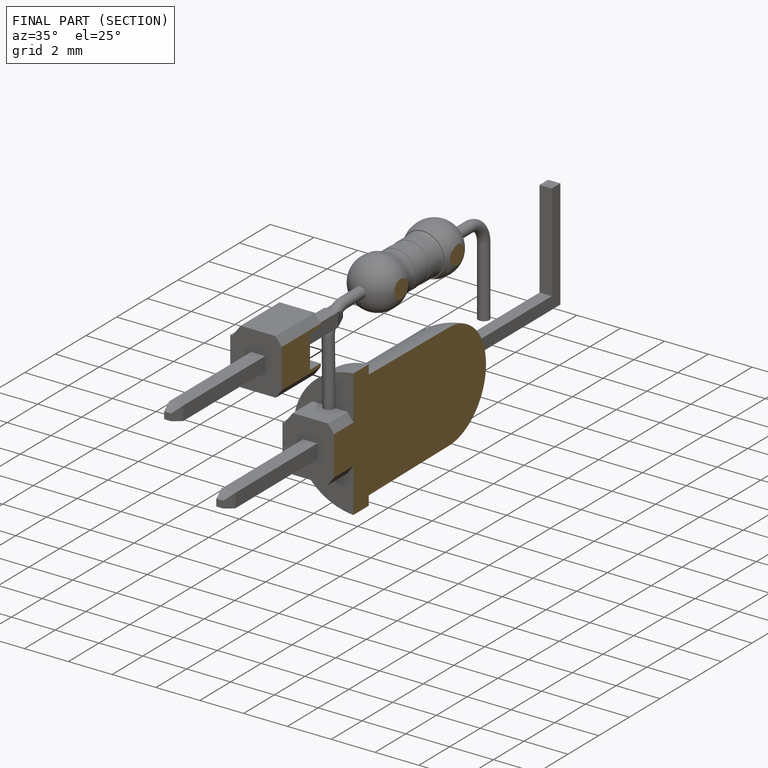
[diagram: finished part — half-section view (interior)]
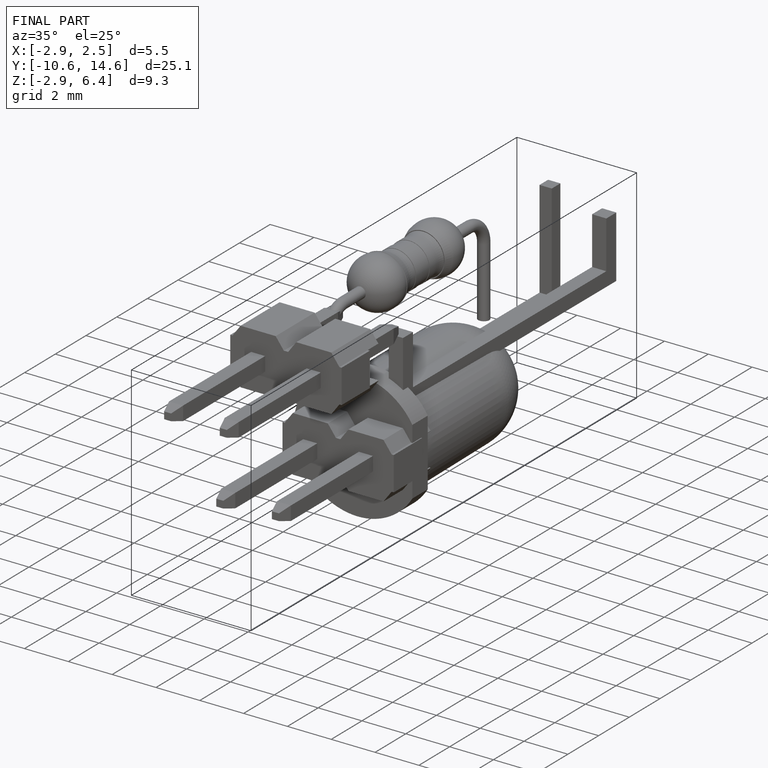
[diagram: finished part — iso view with bounding-box wireframe]
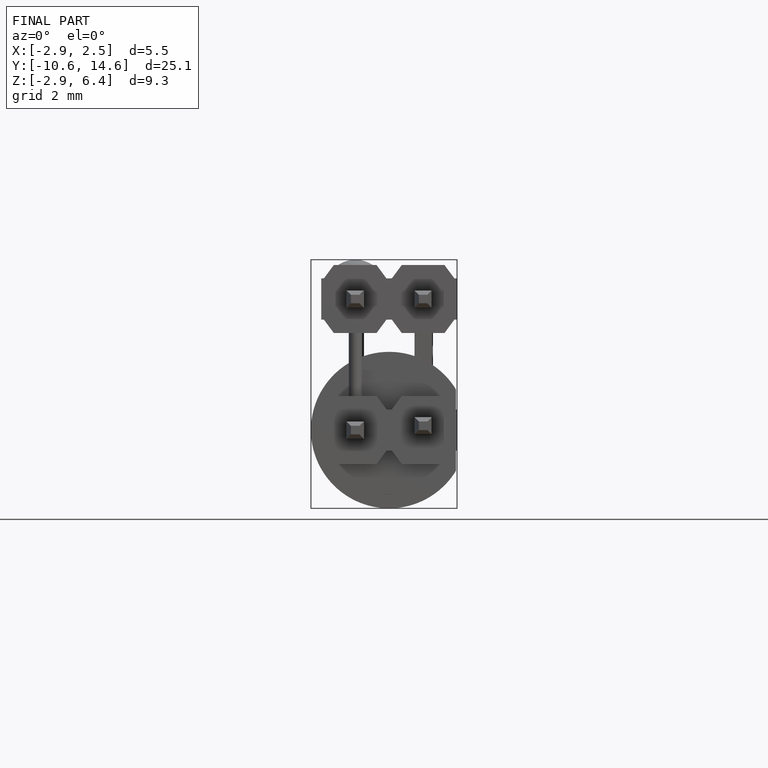
[diagram: finished part — front view with bounding-box wireframe]
